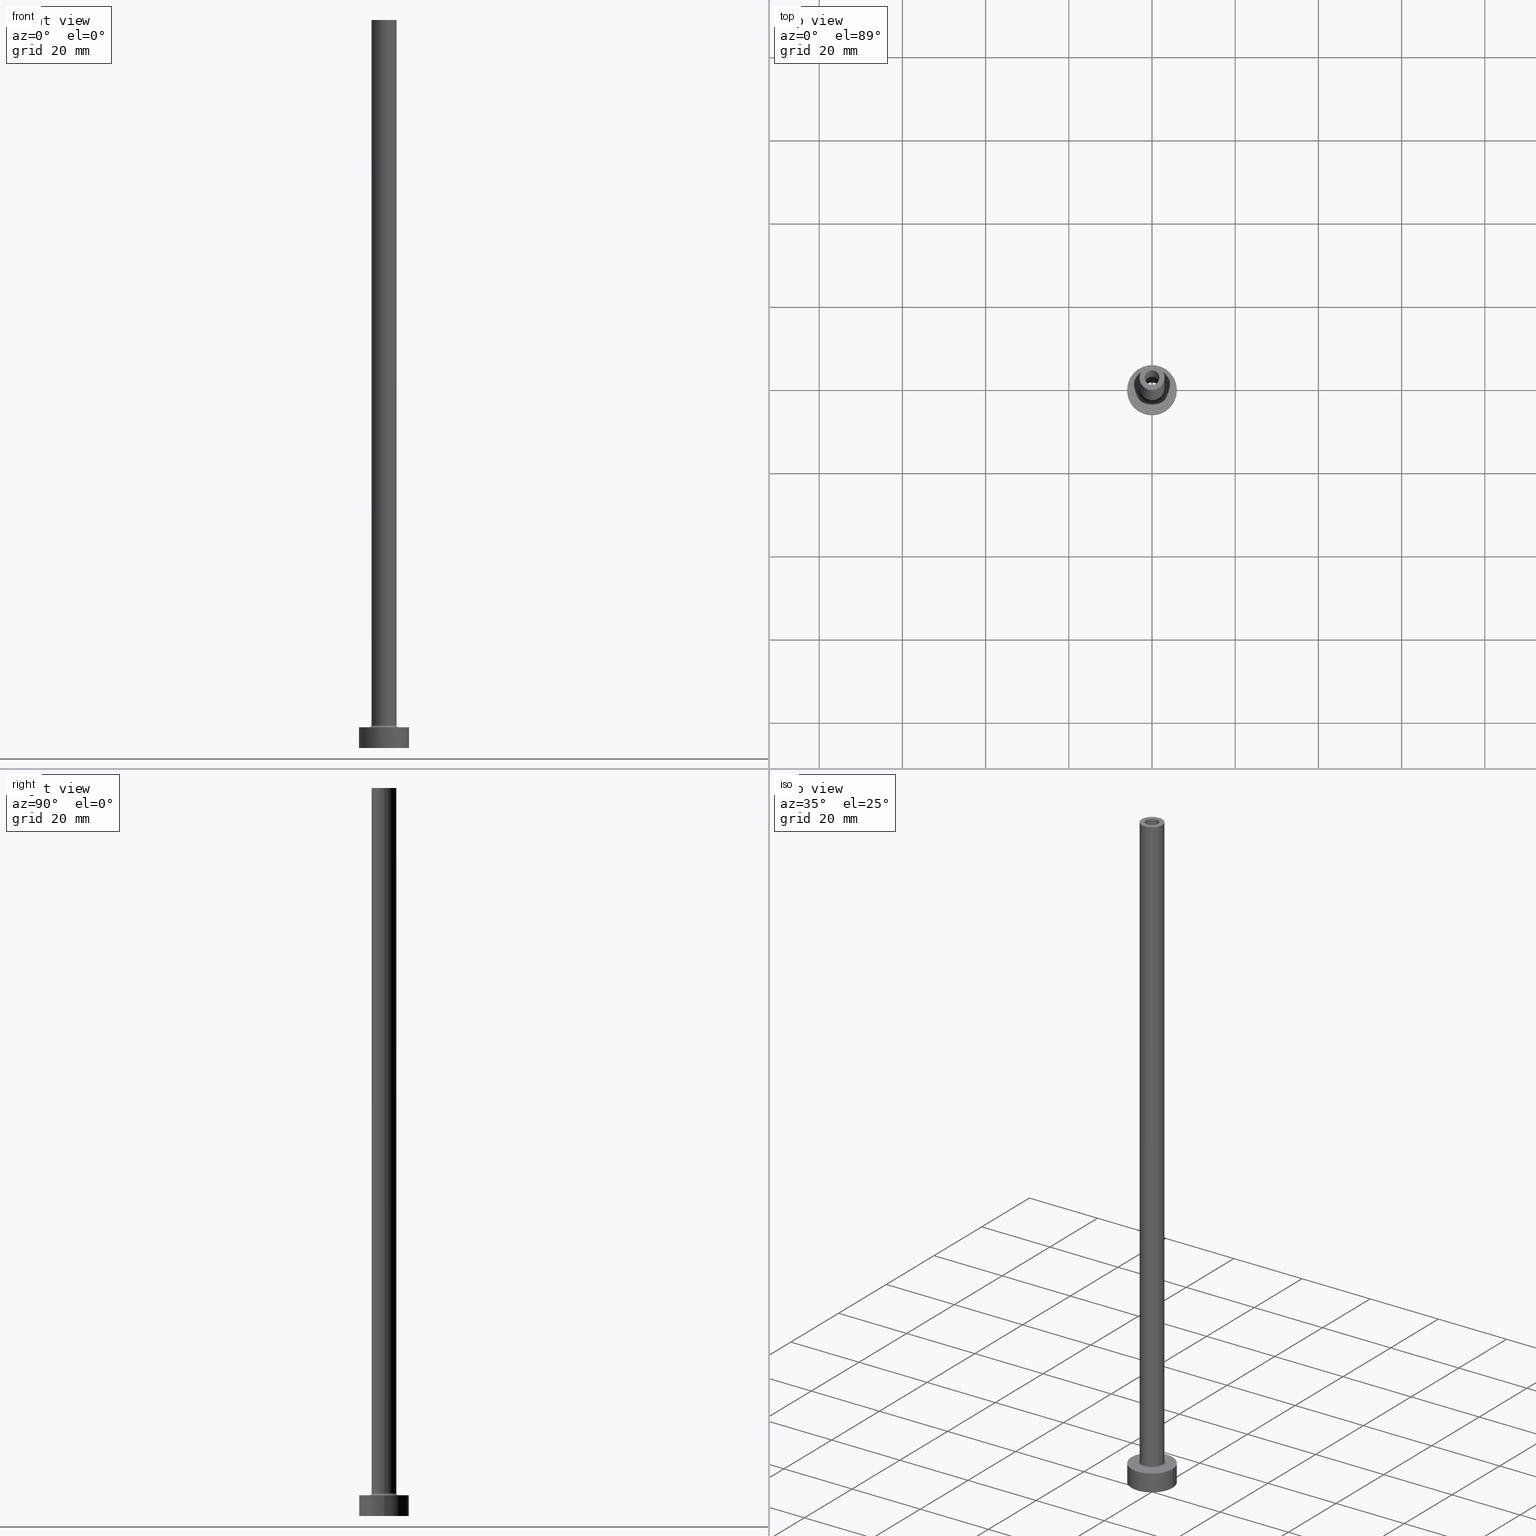
[diagram: canonical four-view strip — front | top / right | iso, engineering-drawing reading convention]
A machine part, canonical four-view strip (front | top / right | iso — engineering-drawing reading convention). The complete STEP part file that produces these views, byte-faithful:
ISO-10303-21;
HEADER;
FILE_DESCRIPTION (( 'STEP AP203' ),
    '1' );
FILE_NAME ('315e.STEP',
    '2023-02-13T17:51:21',
    ( '' ),
    ( '' ),
    'SwSTEP 2.0',
    'SolidWorks 2019',
    '' );
FILE_SCHEMA (( 'CONFIG_CONTROL_DESIGN' ));
ENDSEC;

DATA;
#1 = DIRECTION ( 'NONE',  ( 1.000000000000000000, 0.000000000000000000, 0.000000000000000000 ) ) ;
#2 = PLANE ( 'NONE',  #208 ) ;
#3 = CIRCLE ( 'NONE', #249, 6.000000000000000888 ) ;
#4 = ORIENTED_EDGE ( 'NONE', *, *, #47, .T. ) ;
#5 =( LENGTH_UNIT ( ) NAMED_UNIT ( * ) SI_UNIT ( .MILLI., .METRE. ) );
#6 = AXIS2_PLACEMENT_3D ( 'NONE', #154, #264, #132 ) ;
#7 = DIRECTION ( 'NONE',  ( 0.000000000000000000, 0.000000000000000000, -1.000000000000000000 ) ) ;
#8 = EDGE_LOOP ( 'NONE', ( #456, #276 ) ) ;
#9 = CARTESIAN_POINT ( 'NONE',  ( 0.000000000000000000, 0.000000000000000000, 0.000000000000000000 ) ) ;
#10 = CARTESIAN_POINT ( 'NONE',  ( 1.899999999999999911, 2.326828918379971365E-16, 135.3740115370177932 ) ) ;
#11 = PRODUCT ( '315e', '315e', '', ( #81 ) ) ;
#12 = ORIENTED_EDGE ( 'NONE', *, *, #252, .F. ) ;
#13 = AXIS2_PLACEMENT_3D ( 'NONE', #24, #228, #256 ) ;
#14 = LINE ( 'NONE', #246, #147 ) ;
#15 = ORIENTED_EDGE ( 'NONE', *, *, #375, .T. ) ;
#16 = APPROVAL ( #91, 'NEUR�EN�' ) ;
#17 = ORIENTED_EDGE ( 'NONE', *, *, #120, .T. ) ;
#18 = EDGE_LOOP ( 'NONE', ( #314, #415 ) ) ;
#19 = ORIENTED_EDGE ( 'NONE', *, *, #451, .F. ) ;
#20 = AXIS2_PLACEMENT_3D ( 'NONE', #455, #253, #212 ) ;
#21 = EDGE_CURVE ( 'NONE', #342, #180, #291, .T. ) ;
#22 = CALENDAR_DATE ( 2023, 13, 2 ) ;
#23 = PRODUCT_RELATED_PRODUCT_CATEGORY ( 'detail', '', ( #11 ) ) ;
#24 = CARTESIAN_POINT ( 'NONE',  ( 0.000000000000000000, 0.000000000000000000, 130.0000000000000000 ) ) ;
#25 = DIRECTION ( 'NONE',  ( 1.000000000000000000, 0.000000000000000000, 0.000000000000000000 ) ) ;
#26 = ORIENTED_EDGE ( 'NONE', *, *, #333, .F. ) ;
#27 = CARTESIAN_POINT ( 'NONE',  ( 3.000000000000000444, 3.673940397442060361E-16, 5.500000000000005329 ) ) ;
#28 = DIRECTION ( 'NONE',  ( -0.000000000000000000, -0.000000000000000000, -1.000000000000000000 ) ) ;
#29 = EDGE_LOOP ( 'NONE', ( #35, #140, #84, #248 ) ) ;
#30 = EDGE_CURVE ( 'NONE', #178, #372, #254, .T. ) ;
#31 = CC_DESIGN_APPROVAL ( #16, ( #177 ) ) ;
#32 = LINE ( 'NONE', #63, #58 ) ;
#33 = VERTEX_POINT ( 'NONE', #38 ) ;
#34 = CYLINDRICAL_SURFACE ( 'NONE', #336, 1.750000000000000000 ) ;
#35 = ORIENTED_EDGE ( 'NONE', *, *, #70, .T. ) ;
#36 = CARTESIAN_POINT ( 'NONE',  ( -1.899999999999999911, 0.000000000000000000, 135.3740115370177932 ) ) ;
#37 = DIRECTION ( 'NONE',  ( 0.000000000000000000, 0.000000000000000000, 1.000000000000000000 ) ) ;
#38 = CARTESIAN_POINT ( 'NONE',  ( -6.000000000000000888, 0.000000000000000000, 0.000000000000000000 ) ) ;
#39 = ORIENTED_EDGE ( 'NONE', *, *, #51, .T. ) ;
#40 = EDGE_CURVE ( 'NONE', #128, #55, #418, .T. ) ;
#41 = PERSON_AND_ORGANIZATION_ROLE ( 'creator' ) ;
#42 = CC_DESIGN_SECURITY_CLASSIFICATION ( #177, ( #200 ) ) ;
#43 = DIRECTION ( 'NONE',  ( 0.000000000000000000, 0.000000000000000000, 1.000000000000000000 ) ) ;
#44 = CARTESIAN_POINT ( 'NONE',  ( -1.899999999999999911, 0.000000000000000000, 130.0000000000000000 ) ) ;
#45 = APPROVAL ( #316, 'NEUR�EN�' ) ;
#46 = DIRECTION ( 'NONE',  ( 1.000000000000000000, 0.000000000000000000, 0.000000000000000000 ) ) ;
#47 = EDGE_CURVE ( 'NONE', #88, #323, #83, .T. ) ;
#48 = CLOSED_SHELL ( 'NONE', ( #395, #192, #122, #187, #260, #118, #172, #438, #61, #64, #94, #149, #271, #278 ) ) ;
#49 = CIRCLE ( 'NONE', #20, 1.899999999999999911 ) ;
#50 = ORGANIZATION ( 'NEUR�EN�', 'NEUR�EN�', '' ) ;
#51 = EDGE_CURVE ( 'NONE', #56, #440, #445, .T. ) ;
#52 = VERTEX_POINT ( 'NONE', #374 ) ;
#53 = PERSON_AND_ORGANIZATION ( #241, #50 ) ;
#54 = CC_DESIGN_APPROVAL ( #209, ( #95 ) ) ;
#55 = VERTEX_POINT ( 'NONE', #44 ) ;
#56 = VERTEX_POINT ( 'NONE', #420 ) ;
#57 = AXIS2_PLACEMENT_3D ( 'NONE', #352, #138, #76 ) ;
#58 = VECTOR ( 'NONE', #302, 1000.000000000000000 ) ;
#59 = LINE ( 'NONE', #452, #266 ) ;
#60 = DIRECTION ( 'NONE',  ( 0.000000000000000000, 0.000000000000000000, -1.000000000000000000 ) ) ;
#61 = ADVANCED_FACE ( 'NONE', ( #425 ), #270, .T. ) ;
#62 = CARTESIAN_POINT ( 'NONE',  ( -6.000000000000000888, 0.000000000000000000, 5.000000000000000000 ) ) ;
#63 = CARTESIAN_POINT ( 'NONE',  ( 1.750000000000000000, 2.143131898507868297E-16, 175.0000000000000284 ) ) ;
#64 = ADVANCED_FACE ( 'NONE', ( #167, #317 ), #461, .T. ) ;
#65 =( GEOMETRIC_REPRESENTATION_CONTEXT ( 3 ) GLOBAL_UNCERTAINTY_ASSIGNED_CONTEXT ( ( #145 ) ) GLOBAL_UNIT_ASSIGNED_CONTEXT ( ( #5, #134, #389 ) ) REPRESENTATION_CONTEXT ( 'NONE', 'WORKASPACE' ) );
#66 = DIRECTION ( 'NONE',  ( -0.000000000000000000, -0.000000000000000000, -1.000000000000000000 ) ) ;
#67 = DIRECTION ( 'NONE',  ( 1.000000000000000000, 0.000000000000000000, 0.000000000000000000 ) ) ;
#68 = DIRECTION ( 'NONE',  ( 1.000000000000000000, 0.000000000000000000, 0.000000000000000000 ) ) ;
#69 = CARTESIAN_POINT ( 'NONE',  ( -3.000000000000000444, 0.000000000000000000, 175.0000000000000284 ) ) ;
#70 = EDGE_CURVE ( 'NONE', #55, #128, #116, .T. ) ;
#71 = MANIFOLD_SOLID_BREP ( 'Odebrat vysunut�m4', #48 ) ;
#72 = FACE_OUTER_BOUND ( 'NONE', #29, .T. ) ;
#73 = CYLINDRICAL_SURFACE ( 'NONE', #107, 3.000000000000000444 ) ;
#74 = APPLICATION_PROTOCOL_DEFINITION ( 'international standard', 'config_control_design', 1994, #348 ) ;
#75 = AXIS2_PLACEMENT_3D ( 'NONE', #349, #37, #164 ) ;
#76 = DIRECTION ( 'NONE',  ( -1.000000000000000000, 0.000000000000000000, 0.000000000000000000 ) ) ;
#77 = ORIENTED_EDGE ( 'NONE', *, *, #201, .T. ) ;
#78 = COORDINATED_UNIVERSAL_TIME_OFFSET ( 1, 0, .AHEAD. ) ;
#79 = DIRECTION ( 'NONE',  ( 0.000000000000000000, 0.000000000000000000, 1.000000000000000000 ) ) ;
#80 = ORIENTED_EDGE ( 'NONE', *, *, #51, .F. ) ;
#81 = MECHANICAL_CONTEXT ( 'NONE', #348, 'mechanical' ) ;
#82 = ORIENTED_EDGE ( 'NONE', *, *, #367, .T. ) ;
#83 = CIRCLE ( 'NONE', #285, 1.750000000000000000 ) ;
#84 = ORIENTED_EDGE ( 'NONE', *, *, #333, .T. ) ;
#85 = CALENDAR_DATE ( 2023, 13, 2 ) ;
#86 = AXIS2_PLACEMENT_3D ( 'NONE', #343, #312, #102 ) ;
#87 = CARTESIAN_POINT ( 'NONE',  ( 0.000000000000000000, 0.000000000000000000, 5.500000000000005329 ) ) ;
#88 = VERTEX_POINT ( 'NONE', #133 ) ;
#89 = PRODUCT_DEFINITION_SHAPE ( 'NONE', 'NONE',  #95 ) ;
#90 = EDGE_LOOP ( 'NONE', ( #195, #238, #217, #96 ) ) ;
#91 = APPROVAL_STATUS ( 'not_yet_approved' ) ;
#92 = CARTESIAN_POINT ( 'NONE',  ( 3.500000000000000444, 0.000000000000000000, 5.500000000000005329 ) ) ;
#93 = VERTEX_POINT ( 'NONE', #69 ) ;
#94 = ADVANCED_FACE ( 'NONE', ( #423 ), #111, .F. ) ;
#95 = PRODUCT_DEFINITION ( 'NEZN�M�', '', #200, #435 ) ;
#96 = ORIENTED_EDGE ( 'NONE', *, *, #151, .F. ) ;
#97 = CARTESIAN_POINT ( 'NONE',  ( 0.000000000000000000, 0.000000000000000000, 175.0000000000000284 ) ) ;
#98 = ORIENTED_EDGE ( 'NONE', *, *, #252, .T. ) ;
#99 = ORIENTED_EDGE ( 'NONE', *, *, #201, .F. ) ;
#100 = EDGE_CURVE ( 'NONE', #159, #33, #3, .T. ) ;
#101 = DIRECTION ( 'NONE',  ( 1.000000000000000000, 0.000000000000000000, 0.000000000000000000 ) ) ;
#102 = DIRECTION ( 'NONE',  ( -1.000000000000000000, 0.000000000000000000, 0.000000000000000000 ) ) ;
#103 = FACE_OUTER_BOUND ( 'NONE', #301, .T. ) ;
#104 = CARTESIAN_POINT ( 'NONE',  ( 0.000000000000000000, 0.000000000000000000, 175.0000000000000284 ) ) ;
#105 = AXIS2_PLACEMENT_3D ( 'NONE', #183, #404, #25 ) ;
#106 = ORIENTED_EDGE ( 'NONE', *, *, #168, .T. ) ;
#107 = AXIS2_PLACEMENT_3D ( 'NONE', #383, #204, #229 ) ;
#108 = LINE ( 'NONE', #125, #287 ) ;
#109 = CYLINDRICAL_SURFACE ( 'NONE', #294, 1.899999999999999911 ) ;
#110 = CARTESIAN_POINT ( 'NONE',  ( 0.000000000000000000, 0.000000000000000000, 5.000000000000000000 ) ) ;
#111 = TOROIDAL_SURFACE ( 'NONE', #402, 3.500000000000000444, 0.5000000000000000000 ) ;
#112 = AXIS2_PLACEMENT_3D ( 'NONE', #97, #127, #346 ) ;
#113 = CARTESIAN_POINT ( 'NONE',  ( 0.000000000000000000, 0.000000000000000000, 130.0000000000000000 ) ) ;
#114 = EDGE_CURVE ( 'NONE', #55, #52, #296, .T. ) ;
#115 = LINE ( 'NONE', #10, #126 ) ;
#116 = CIRCLE ( 'NONE', #300, 1.899999999999999911 ) ;
#117 = AXIS2_PLACEMENT_3D ( 'NONE', #221, #413, #130 ) ;
#118 = ADVANCED_FACE ( 'NONE', ( #268 ), #186, .T. ) ;
#119 = CC_DESIGN_PERSON_AND_ORGANIZATION_ASSIGNMENT ( #53, #41, ( #200 ) ) ;
#120 = EDGE_CURVE ( 'NONE', #189, #93, #265, .T. ) ;
#121 = VECTOR ( 'NONE', #345, 1000.000000000000000 ) ;
#122 = ADVANCED_FACE ( 'NONE', ( #376 ), #277, .F. ) ;
#123 = APPLICATION_CONTEXT ( 'configuration controlled 3d designs of mechanical parts and assemblies' ) ;
#124 = CARTESIAN_POINT ( 'NONE',  ( 0.000000000000000000, 0.000000000000000000, 5.000000000000000000 ) ) ;
#125 = CARTESIAN_POINT ( 'NONE',  ( -1.750000000000000000, 0.000000000000000000, 175.0000000000000284 ) ) ;
#126 = VECTOR ( 'NONE', #424, 1000.000000000000000 ) ;
#127 = DIRECTION ( 'NONE',  ( 0.000000000000000000, 0.000000000000000000, 1.000000000000000000 ) ) ;
#128 = VERTEX_POINT ( 'NONE', #339 ) ;
#129 = DIRECTION ( 'NONE',  ( 1.000000000000000000, 0.000000000000000000, 0.000000000000000000 ) ) ;
#130 = DIRECTION ( 'NONE',  ( 1.000000000000000000, 0.000000000000000000, 0.000000000000000000 ) ) ;
#131 = LOCAL_TIME ( 18, 51, 21.00000000000000000, #78 ) ;
#132 = DIRECTION ( 'NONE',  ( 1.000000000000000000, 0.000000000000000000, 0.000000000000000000 ) ) ;
#133 = CARTESIAN_POINT ( 'NONE',  ( -1.750000000000000000, 0.000000000000000000, 175.0000000000000284 ) ) ;
#134 =( NAMED_UNIT ( * ) PLANE_ANGLE_UNIT ( ) SI_UNIT ( $, .RADIAN. ) );
#135 = CARTESIAN_POINT ( 'NONE',  ( 0.000000000000000000, 0.000000000000000000, 175.0000000000000284 ) ) ;
#136 = EDGE_CURVE ( 'NONE', #180, #159, #14, .T. ) ;
#137 = PERSON_AND_ORGANIZATION_ROLE ( 'creator' ) ;
#138 = DIRECTION ( 'NONE',  ( -0.000000000000000000, -0.000000000000000000, -1.000000000000000000 ) ) ;
#139 = EDGE_CURVE ( 'NONE', #180, #342, #141, .T. ) ;
#140 = ORIENTED_EDGE ( 'NONE', *, *, #451, .T. ) ;
#141 = CIRCLE ( 'NONE', #405, 6.000000000000000888 ) ;
#142 = CARTESIAN_POINT ( 'NONE',  ( 0.000000000000000000, 0.000000000000000000, 5.000000000000000000 ) ) ;
#143 = APPROVAL_DATE_TIME ( #394, #209 ) ;
#144 = AXIS2_PLACEMENT_3D ( 'NONE', #306, #66, #454 ) ;
#145 = UNCERTAINTY_MEASURE_WITH_UNIT (LENGTH_MEASURE( 1.000000000000000082E-05 ), #5, 'distance_accuracy_value', 'NONE');
#146 = ORIENTED_EDGE ( 'NONE', *, *, #151, .T. ) ;
#147 = VECTOR ( 'NONE', #206, 1000.000000000000000 ) ;
#148 = ORIENTED_EDGE ( 'NONE', *, *, #21, .T. ) ;
#149 = ADVANCED_FACE ( 'NONE', ( #224 ), #381, .F. ) ;
#150 = EDGE_LOOP ( 'NONE', ( #171, #280, #220, #12 ) ) ;
#151 = EDGE_CURVE ( 'NONE', #93, #347, #194, .T. ) ;
#152 = DATE_AND_TIME ( #250, #165 ) ;
#153 = AXIS2_PLACEMENT_3D ( 'NONE', #142, #163, #185 ) ;
#154 = CARTESIAN_POINT ( 'NONE',  ( 0.000000000000000000, 0.000000000000000000, 5.500000000000005329 ) ) ;
#155 = CARTESIAN_POINT ( 'NONE',  ( 3.500000000000000444, 0.000000000000000000, 5.000000000000002665 ) ) ;
#156 = CIRCLE ( 'NONE', #337, 1.750000000000000000 ) ;
#157 = EDGE_LOOP ( 'NONE', ( #205, #299, #267, #259 ) ) ;
#158 = DIRECTION ( 'NONE',  ( 1.224646799147353207E-16, 1.000000000000000000, -0.000000000000000000 ) ) ;
#159 = VERTEX_POINT ( 'NONE', #292 ) ;
#160 = EDGE_CURVE ( 'NONE', #372, #322, #385, .T. ) ;
#161 = DIRECTION ( 'NONE',  ( 1.000000000000000000, 0.000000000000000000, 0.000000000000000000 ) ) ;
#162 = ORIENTED_EDGE ( 'NONE', *, *, #305, .T. ) ;
#163 = DIRECTION ( 'NONE',  ( 0.000000000000000000, 0.000000000000000000, 1.000000000000000000 ) ) ;
#164 = DIRECTION ( 'NONE',  ( 1.000000000000000000, 0.000000000000000000, 0.000000000000000000 ) ) ;
#165 = LOCAL_TIME ( 18, 51, 21.00000000000000000, #335 ) ;
#166 = PERSON_AND_ORGANIZATION ( #241, #50 ) ;
#167 = FACE_BOUND ( 'NONE', #18, .T. ) ;
#168 = EDGE_CURVE ( 'NONE', #52, #412, #49, .T. ) ;
#169 = DIRECTION ( 'NONE',  ( 1.000000000000000000, 0.000000000000000000, 0.000000000000000000 ) ) ;
#170 = APPROVAL_STATUS ( 'not_yet_approved' ) ;
#171 = ORIENTED_EDGE ( 'NONE', *, *, #332, .F. ) ;
#172 = ADVANCED_FACE ( 'NONE', ( #218, #399 ), #203, .T. ) ;
#173 = EDGE_LOOP ( 'NONE', ( #303, #98 ) ) ;
#174 = FACE_OUTER_BOUND ( 'NONE', #443, .T. ) ;
#175 = AXIS2_PLACEMENT_3D ( 'NONE', #231, #414, #67 ) ;
#176 = PERSON_AND_ORGANIZATION ( #241, #50 ) ;
#177 = SECURITY_CLASSIFICATION ( '', '', #460 ) ;
#178 = VERTEX_POINT ( 'NONE', #27 ) ;
#179 = DIRECTION ( 'NONE',  ( 1.000000000000000000, 0.000000000000000000, 0.000000000000000000 ) ) ;
#180 = VERTEX_POINT ( 'NONE', #272 ) ;
#181 = APPROVAL_DATE_TIME ( #293, #16 ) ;
#182 = EDGE_CURVE ( 'NONE', #342, #33, #236, .T. ) ;
#183 = CARTESIAN_POINT ( 'NONE',  ( 0.000000000000000000, 0.000000000000000000, 5.000000000000000000 ) ) ;
#184 = DIRECTION ( 'NONE',  ( 0.000000000000000000, 0.000000000000000000, 1.000000000000000000 ) ) ;
#185 = DIRECTION ( 'NONE',  ( 1.000000000000000000, 0.000000000000000000, -0.000000000000000000 ) ) ;
#186 = CYLINDRICAL_SURFACE ( 'NONE', #232, 6.000000000000000888 ) ;
#187 = ADVANCED_FACE ( 'NONE', ( #329 ), #73, .T. ) ;
#188 = FACE_OUTER_BOUND ( 'NONE', #368, .T. ) ;
#189 = VERTEX_POINT ( 'NONE', #261 ) ;
#190 = CARTESIAN_POINT ( 'NONE',  ( -3.000000000000000444, 0.000000000000000000, 175.0000000000000284 ) ) ;
#191 = CARTESIAN_POINT ( 'NONE',  ( -3.500000000000000444, 4.286263797015737088E-16, 5.500000000000005329 ) ) ;
#192 = ADVANCED_FACE ( 'NONE', ( #72 ), #109, .F. ) ;
#193 = VECTOR ( 'NONE', #308, 1000.000000000000000 ) ;
#194 = LINE ( 'NONE', #190, #121 ) ;
#195 = ORIENTED_EDGE ( 'NONE', *, *, #120, .F. ) ;
#196 = DIRECTION ( 'NONE',  ( 0.000000000000000000, 0.000000000000000000, 1.000000000000000000 ) ) ;
#197 = CARTESIAN_POINT ( 'NONE',  ( 1.899999999999999911, 2.326828918379971365E-16, 0.000000000000000000 ) ) ;
#198 = COORDINATED_UNIVERSAL_TIME_OFFSET ( 1, 0, .AHEAD. ) ;
#199 = CARTESIAN_POINT ( 'NONE',  ( 0.000000000000000000, 0.000000000000000000, 0.000000000000000000 ) ) ;
#200 = PRODUCT_DEFINITION_FORMATION_WITH_SPECIFIED_SOURCE ( 'LIBOVOLN�', '', #11, .NOT_KNOWN. ) ;
#201 = EDGE_CURVE ( 'NONE', #347, #178, #331, .T. ) ;
#202 = CARTESIAN_POINT ( 'NONE',  ( 0.000000000000000000, 0.000000000000000000, 130.0000000000000000 ) ) ;
#203 = PLANE ( 'NONE',  #153 ) ;
#204 = DIRECTION ( 'NONE',  ( -0.000000000000000000, -0.000000000000000000, -1.000000000000000000 ) ) ;
#205 = ORIENTED_EDGE ( 'NONE', *, *, #139, .F. ) ;
#206 = DIRECTION ( 'NONE',  ( -0.000000000000000000, -0.000000000000000000, -1.000000000000000000 ) ) ;
#207 = DATE_AND_TIME ( #85, #304 ) ;
#208 = AXIS2_PLACEMENT_3D ( 'NONE', #9, #273, #235 ) ;
#209 = APPROVAL ( #170, 'NEUR�EN�' ) ;
#210 = COORDINATED_UNIVERSAL_TIME_OFFSET ( 1, 0, .AHEAD. ) ;
#211 = CARTESIAN_POINT ( 'NONE',  ( 0.000000000000000000, 0.000000000000000000, 135.3740115370177932 ) ) ;
#212 = DIRECTION ( 'NONE',  ( 1.000000000000000000, 0.000000000000000000, 0.000000000000000000 ) ) ;
#213 = AXIS2_PLACEMENT_3D ( 'NONE', #135, #274, #426 ) ;
#214 = SHAPE_DEFINITION_REPRESENTATION ( #89, #434 ) ;
#215 = CC_DESIGN_PERSON_AND_ORGANIZATION_ASSIGNMENT ( #361, #137, ( #95 ) ) ;
#216 = LOCAL_TIME ( 18, 51, 21.00000000000000000, #210 ) ;
#217 = ORIENTED_EDGE ( 'NONE', *, *, #416, .T. ) ;
#218 = FACE_BOUND ( 'NONE', #173, .T. ) ;
#219 = ORIENTED_EDGE ( 'NONE', *, *, #408, .T. ) ;
#220 = ORIENTED_EDGE ( 'NONE', *, *, #30, .T. ) ;
#221 = CARTESIAN_POINT ( 'NONE',  ( 0.000000000000000000, 0.000000000000000000, 0.000000000000000000 ) ) ;
#222 = DIRECTION ( 'NONE',  ( 0.000000000000000000, -1.000000000000000000, 0.000000000000000000 ) ) ;
#223 = APPROVAL_PERSON_ORGANIZATION ( #427, #209, #240 ) ;
#224 = FACE_OUTER_BOUND ( 'NONE', #432, .T. ) ;
#225 = ORIENTED_EDGE ( 'NONE', *, *, #367, .F. ) ;
#226 = FACE_OUTER_BOUND ( 'NONE', #8, .T. ) ;
#227 = ORIENTED_EDGE ( 'NONE', *, *, #375, .F. ) ;
#228 = DIRECTION ( 'NONE',  ( 0.000000000000000000, 0.000000000000000000, 1.000000000000000000 ) ) ;
#229 = DIRECTION ( 'NONE',  ( -1.000000000000000000, 0.000000000000000000, 0.000000000000000000 ) ) ;
#230 = DIRECTION ( 'NONE',  ( -1.000000000000000000, 0.000000000000000000, 0.000000000000000000 ) ) ;
#231 = CARTESIAN_POINT ( 'NONE',  ( 0.000000000000000000, 0.000000000000000000, 5.000000000000000000 ) ) ;
#232 = AXIS2_PLACEMENT_3D ( 'NONE', #124, #255, #422 ) ;
#233 = AXIS2_PLACEMENT_3D ( 'NONE', #297, #380, #382 ) ;
#234 = DIRECTION ( 'NONE',  ( 0.000000000000000000, 0.000000000000000000, 1.000000000000000000 ) ) ;
#235 = DIRECTION ( 'NONE',  ( 1.000000000000000000, 0.000000000000000000, -0.000000000000000000 ) ) ;
#236 = LINE ( 'NONE', #245, #244 ) ;
#237 = DATE_TIME_ROLE ( 'creation_date' ) ;
#238 = ORIENTED_EDGE ( 'NONE', *, *, #350, .T. ) ;
#239 = PERSON_AND_ORGANIZATION ( #241, #50 ) ;
#240 = APPROVAL_ROLE ( '' ) ;
#241 = PERSON ( 'NEUR�EN�', 'NEUR�EN�', 'NEUR�EN�', ('NEUR�EN�'), ('NEUR�EN�'), ('NEUR�EN�') ) ;
#242 = CC_DESIGN_DATE_AND_TIME_ASSIGNMENT ( #152, #288, ( #177 ) ) ;
#243 = CARTESIAN_POINT ( 'NONE',  ( 0.000000000000000000, 0.000000000000000000, 175.0000000000000284 ) ) ;
#244 = VECTOR ( 'NONE', #398, 1000.000000000000000 ) ;
#245 = CARTESIAN_POINT ( 'NONE',  ( -6.000000000000000888, 0.000000000000000000, 5.000000000000000000 ) ) ;
#246 = CARTESIAN_POINT ( 'NONE',  ( 6.000000000000000888, 7.347880794884120722E-16, 5.000000000000000000 ) ) ;
#247 = DIRECTION ( 'NONE',  ( 0.000000000000000000, 0.000000000000000000, 1.000000000000000000 ) ) ;
#248 = ORIENTED_EDGE ( 'NONE', *, *, #114, .F. ) ;
#249 = AXIS2_PLACEMENT_3D ( 'NONE', #199, #319, #1 ) ;
#250 = CALENDAR_DATE ( 2023, 13, 2 ) ;
#251 = CIRCLE ( 'NONE', #406, 6.000000000000000888 ) ;
#252 = EDGE_CURVE ( 'NONE', #322, #372, #344, .T. ) ;
#253 = DIRECTION ( 'NONE',  ( -0.000000000000000000, -0.000000000000000000, -1.000000000000000000 ) ) ;
#254 = CIRCLE ( 'NONE', #360, 0.5000000000000004441 ) ;
#255 = DIRECTION ( 'NONE',  ( -0.000000000000000000, -0.000000000000000000, -1.000000000000000000 ) ) ;
#256 = DIRECTION ( 'NONE',  ( 1.000000000000000000, 0.000000000000000000, -0.000000000000000000 ) ) ;
#257 = CIRCLE ( 'NONE', #378, 3.000000000000000444 ) ;
#258 = CARTESIAN_POINT ( 'NONE',  ( -3.500000000000000444, 4.286263797015737088E-16, 5.000000000000002665 ) ) ;
#259 = ORIENTED_EDGE ( 'NONE', *, *, #182, .F. ) ;
#260 = ADVANCED_FACE ( 'NONE', ( #411 ), #449, .T. ) ;
#261 = CARTESIAN_POINT ( 'NONE',  ( 3.000000000000000444, 3.673940397442060361E-16, 175.0000000000000284 ) ) ;
#262 = CARTESIAN_POINT ( 'NONE',  ( 0.000000000000000000, 0.000000000000000000, 175.0000000000000284 ) ) ;
#263 = AXIS2_PLACEMENT_3D ( 'NONE', #113, #431, #392 ) ;
#264 = DIRECTION ( 'NONE',  ( 0.000000000000000000, 0.000000000000000000, 1.000000000000000000 ) ) ;
#265 = CIRCLE ( 'NONE', #436, 3.000000000000000444 ) ;
#266 = VECTOR ( 'NONE', #28, 1000.000000000000000 ) ;
#267 = ORIENTED_EDGE ( 'NONE', *, *, #100, .T. ) ;
#268 = FACE_OUTER_BOUND ( 'NONE', #307, .T. ) ;
#269 = CYLINDRICAL_SURFACE ( 'NONE', #233, 1.750000000000000000 ) ;
#270 = CYLINDRICAL_SURFACE ( 'NONE', #57, 3.000000000000000444 ) ;
#271 = ADVANCED_FACE ( 'NONE', ( #417, #226 ), #379, .F. ) ;
#272 = CARTESIAN_POINT ( 'NONE',  ( 6.000000000000000888, 7.347880794884120722E-16, 5.000000000000000000 ) ) ;
#273 = DIRECTION ( 'NONE',  ( 0.000000000000000000, 0.000000000000000000, 1.000000000000000000 ) ) ;
#274 = DIRECTION ( 'NONE',  ( 0.000000000000000000, 0.000000000000000000, 1.000000000000000000 ) ) ;
#275 = CALENDAR_DATE ( 2023, 13, 2 ) ;
#276 = ORIENTED_EDGE ( 'NONE', *, *, #40, .F. ) ;
#277 = TOROIDAL_SURFACE ( 'NONE', #286, 3.500000000000000444, 0.5000000000000000000 ) ;
#278 = ADVANCED_FACE ( 'NONE', ( #103 ), #269, .F. ) ;
#279 = COORDINATED_UNIVERSAL_TIME_OFFSET ( 1, 0, .AHEAD. ) ;
#280 = ORIENTED_EDGE ( 'NONE', *, *, #416, .F. ) ;
#281 = CC_DESIGN_PERSON_AND_ORGANIZATION_ASSIGNMENT ( #433, #365, ( #177 ) ) ;
#282 = APPLICATION_PROTOCOL_DEFINITION ( 'international standard', 'config_control_design', 1994, #123 ) ;
#283 = ORIENTED_EDGE ( 'NONE', *, *, #114, .T. ) ;
#284 = ORIENTED_EDGE ( 'NONE', *, *, #139, .T. ) ;
#285 = AXIS2_PLACEMENT_3D ( 'NONE', #243, #313, #318 ) ;
#286 = AXIS2_PLACEMENT_3D ( 'NONE', #87, #247, #334 ) ;
#287 = VECTOR ( 'NONE', #340, 1000.000000000000000 ) ;
#288 = DATE_TIME_ROLE ( 'classification_date' ) ;
#289 = EDGE_LOOP ( 'NONE', ( #450, #225, #146, #77 ) ) ;
#290 = APPROVAL_ROLE ( '' ) ;
#291 = CIRCLE ( 'NONE', #105, 6.000000000000000888 ) ;
#292 = CARTESIAN_POINT ( 'NONE',  ( 6.000000000000000888, 7.347880794884120722E-16, 0.000000000000000000 ) ) ;
#293 = DATE_AND_TIME ( #22, #216 ) ;
#294 = AXIS2_PLACEMENT_3D ( 'NONE', #211, #7, #309 ) ;
#295 = ORIENTED_EDGE ( 'NONE', *, *, #21, .F. ) ;
#296 = LINE ( 'NONE', #36, #193 ) ;
#297 = CARTESIAN_POINT ( 'NONE',  ( 0.000000000000000000, 0.000000000000000000, 175.0000000000000284 ) ) ;
#298 = CARTESIAN_POINT ( 'NONE',  ( 0.000000000000000000, 0.000000000000000000, 135.3740115370177932 ) ) ;
#299 = ORIENTED_EDGE ( 'NONE', *, *, #136, .T. ) ;
#300 = AXIS2_PLACEMENT_3D ( 'NONE', #202, #357, #459 ) ;
#301 = EDGE_LOOP ( 'NONE', ( #330, #311, #15, #397 ) ) ;
#302 = DIRECTION ( 'NONE',  ( 0.000000000000000000, 0.000000000000000000, -1.000000000000000000 ) ) ;
#303 = ORIENTED_EDGE ( 'NONE', *, *, #160, .T. ) ;
#304 = LOCAL_TIME ( 18, 51, 21.00000000000000000, #198 ) ;
#305 = EDGE_CURVE ( 'NONE', #323, #440, #32, .T. ) ;
#306 = CARTESIAN_POINT ( 'NONE',  ( 0.000000000000000000, 0.000000000000000000, 5.000000000000000000 ) ) ;
#307 = EDGE_LOOP ( 'NONE', ( #358, #295, #386, #219 ) ) ;
#308 = DIRECTION ( 'NONE',  ( 0.000000000000000000, 0.000000000000000000, -1.000000000000000000 ) ) ;
#309 = DIRECTION ( 'NONE',  ( -1.000000000000000000, 0.000000000000000000, 0.000000000000000000 ) ) ;
#310 = ORIENTED_EDGE ( 'NONE', *, *, #160, .F. ) ;
#311 = ORIENTED_EDGE ( 'NONE', *, *, #321, .T. ) ;
#312 = DIRECTION ( 'NONE',  ( -0.000000000000000000, -0.000000000000000000, -1.000000000000000000 ) ) ;
#313 = DIRECTION ( 'NONE',  ( 0.000000000000000000, 0.000000000000000000, 1.000000000000000000 ) ) ;
#314 = ORIENTED_EDGE ( 'NONE', *, *, #47, .F. ) ;
#315 = EDGE_LOOP ( 'NONE', ( #82, #17 ) ) ;
#316 = APPROVAL_STATUS ( 'not_yet_approved' ) ;
#317 = FACE_OUTER_BOUND ( 'NONE', #315, .T. ) ;
#318 = DIRECTION ( 'NONE',  ( 1.000000000000000000, 0.000000000000000000, 0.000000000000000000 ) ) ;
#319 = DIRECTION ( 'NONE',  ( 0.000000000000000000, 0.000000000000000000, 1.000000000000000000 ) ) ;
#320 = CARTESIAN_POINT ( 'NONE',  ( 0.000000000000000000, 0.000000000000000000, 0.000000000000000000 ) ) ;
#321 = EDGE_CURVE ( 'NONE', #323, #88, #442, .T. ) ;
#322 = VERTEX_POINT ( 'NONE', #258 ) ;
#323 = VERTEX_POINT ( 'NONE', #444 ) ;
#324 = CARTESIAN_POINT ( 'NONE',  ( 1.750000000000000000, 2.143131898507868297E-16, 130.0000000000000000 ) ) ;
#325 = CC_DESIGN_PERSON_AND_ORGANIZATION_ASSIGNMENT ( #166, #328, ( #200 ) ) ;
#326 = ORIENTED_EDGE ( 'NONE', *, *, #408, .F. ) ;
#327 = APPROVAL_DATE_TIME ( #430, #45 ) ;
#328 = PERSON_AND_ORGANIZATION_ROLE ( 'design_supplier' ) ;
#329 = FACE_OUTER_BOUND ( 'NONE', #90, .T. ) ;
#330 = ORIENTED_EDGE ( 'NONE', *, *, #305, .F. ) ;
#331 = CIRCLE ( 'NONE', #6, 3.000000000000000444 ) ;
#332 = EDGE_CURVE ( 'NONE', #347, #322, #373, .T. ) ;
#333 = EDGE_CURVE ( 'NONE', #412, #52, #390, .T. ) ;
#334 = DIRECTION ( 'NONE',  ( 1.000000000000000000, 0.000000000000000000, 0.000000000000000000 ) ) ;
#335 = COORDINATED_UNIVERSAL_TIME_OFFSET ( 1, 0, .AHEAD. ) ;
#336 = AXIS2_PLACEMENT_3D ( 'NONE', #262, #388, #230 ) ;
#337 = AXIS2_PLACEMENT_3D ( 'NONE', #457, #196, #161 ) ;
#338 = ORIENTED_EDGE ( 'NONE', *, *, #332, .T. ) ;
#339 = CARTESIAN_POINT ( 'NONE',  ( 1.899999999999999911, 2.326828918379971365E-16, 130.0000000000000000 ) ) ;
#340 = DIRECTION ( 'NONE',  ( 0.000000000000000000, 0.000000000000000000, -1.000000000000000000 ) ) ;
#341 = CARTESIAN_POINT ( 'NONE',  ( -3.000000000000000444, 0.000000000000000000, 5.500000000000005329 ) ) ;
#342 = VERTEX_POINT ( 'NONE', #62 ) ;
#343 = CARTESIAN_POINT ( 'NONE',  ( 0.000000000000000000, 0.000000000000000000, 5.000000000000000000 ) ) ;
#344 = CIRCLE ( 'NONE', #144, 3.500000000000000444 ) ;
#345 = DIRECTION ( 'NONE',  ( -0.000000000000000000, -0.000000000000000000, -1.000000000000000000 ) ) ;
#346 = DIRECTION ( 'NONE',  ( 1.000000000000000000, 0.000000000000000000, 0.000000000000000000 ) ) ;
#347 = VERTEX_POINT ( 'NONE', #341 ) ;
#348 = APPLICATION_CONTEXT ( 'configuration controlled 3d designs of mechanical parts and assemblies' ) ;
#349 = CARTESIAN_POINT ( 'NONE',  ( 0.000000000000000000, 0.000000000000000000, 5.500000000000005329 ) ) ;
#350 = EDGE_CURVE ( 'NONE', #189, #178, #59, .T. ) ;
#351 = CALENDAR_DATE ( 2023, 13, 2 ) ;
#352 = CARTESIAN_POINT ( 'NONE',  ( 0.000000000000000000, 0.000000000000000000, 175.0000000000000284 ) ) ;
#353 = CARTESIAN_POINT ( 'NONE',  ( 0.000000000000000000, 0.000000000000000000, 130.0000000000000000 ) ) ;
#354 = APPROVAL_PERSON_ORGANIZATION ( #239, #45, #391 ) ;
#355 = CARTESIAN_POINT ( 'NONE',  ( 0.000000000000000000, 0.000000000000000000, 5.500000000000005329 ) ) ;
#356 = PERSON_AND_ORGANIZATION_ROLE ( 'design_owner' ) ;
#357 = DIRECTION ( 'NONE',  ( 0.000000000000000000, 0.000000000000000000, 1.000000000000000000 ) ) ;
#358 = ORIENTED_EDGE ( 'NONE', *, *, #136, .F. ) ;
#359 = DIRECTION ( 'NONE',  ( 0.000000000000000000, 0.000000000000000000, 1.000000000000000000 ) ) ;
#360 = AXIS2_PLACEMENT_3D ( 'NONE', #92, #222, #401 ) ;
#361 = PERSON_AND_ORGANIZATION ( #241, #50 ) ;
#362 = DIRECTION ( 'NONE',  ( 0.000000000000000000, 0.000000000000000000, 1.000000000000000000 ) ) ;
#363 = EDGE_LOOP ( 'NONE', ( #366, #26 ) ) ;
#364 = EDGE_LOOP ( 'NONE', ( #99, #338, #310, #369 ) ) ;
#365 = PERSON_AND_ORGANIZATION_ROLE ( 'classification_officer' ) ;
#366 = ORIENTED_EDGE ( 'NONE', *, *, #168, .F. ) ;
#367 = EDGE_CURVE ( 'NONE', #93, #189, #257, .T. ) ;
#368 = EDGE_LOOP ( 'NONE', ( #4, #162, #80, #227 ) ) ;
#369 = ORIENTED_EDGE ( 'NONE', *, *, #30, .F. ) ;
#370 = EDGE_LOOP ( 'NONE', ( #148, #284 ) ) ;
#371 = AXIS2_PLACEMENT_3D ( 'NONE', #353, #79, #46 ) ;
#372 = VERTEX_POINT ( 'NONE', #155 ) ;
#373 = CIRCLE ( 'NONE', #421, 0.4999999999999995559 ) ;
#374 = CARTESIAN_POINT ( 'NONE',  ( -1.899999999999999911, 0.000000000000000000, 0.000000000000000000 ) ) ;
#375 = EDGE_CURVE ( 'NONE', #88, #56, #108, .T. ) ;
#376 = FACE_OUTER_BOUND ( 'NONE', #364, .T. ) ;
#377 = CC_DESIGN_DATE_AND_TIME_ASSIGNMENT ( #207, #237, ( #95 ) ) ;
#378 = AXIS2_PLACEMENT_3D ( 'NONE', #104, #184, #129 ) ;
#379 = PLANE ( 'NONE',  #13 ) ;
#380 = DIRECTION ( 'NONE',  ( 0.000000000000000000, 0.000000000000000000, -1.000000000000000000 ) ) ;
#381 = CYLINDRICAL_SURFACE ( 'NONE', #441, 1.899999999999999911 ) ;
#382 = DIRECTION ( 'NONE',  ( -1.000000000000000000, 0.000000000000000000, 0.000000000000000000 ) ) ;
#383 = CARTESIAN_POINT ( 'NONE',  ( 0.000000000000000000, 0.000000000000000000, 175.0000000000000284 ) ) ;
#384 = DIRECTION ( 'NONE',  ( -1.000000000000000000, 1.224646799147354440E-16, 0.000000000000000000 ) ) ;
#385 = CIRCLE ( 'NONE', #175, 3.500000000000000444 ) ;
#386 = ORIENTED_EDGE ( 'NONE', *, *, #182, .T. ) ;
#387 = DIRECTION ( 'NONE',  ( 0.000000000000000000, 0.000000000000000000, 1.000000000000000000 ) ) ;
#388 = DIRECTION ( 'NONE',  ( 0.000000000000000000, 0.000000000000000000, -1.000000000000000000 ) ) ;
#389 =( NAMED_UNIT ( * ) SI_UNIT ( $, .STERADIAN. ) SOLID_ANGLE_UNIT ( ) );
#390 = CIRCLE ( 'NONE', #117, 1.899999999999999911 ) ;
#391 = APPROVAL_ROLE ( '' ) ;
#392 = DIRECTION ( 'NONE',  ( 1.000000000000000000, 0.000000000000000000, 0.000000000000000000 ) ) ;
#393 = FACE_BOUND ( 'NONE', #363, .T. ) ;
#394 = DATE_AND_TIME ( #275, #448 ) ;
#395 = ADVANCED_FACE ( 'NONE', ( #188 ), #34, .F. ) ;
#396 = CIRCLE ( 'NONE', #75, 3.000000000000000444 ) ;
#397 = ORIENTED_EDGE ( 'NONE', *, *, #400, .F. ) ;
#398 = DIRECTION ( 'NONE',  ( -0.000000000000000000, -0.000000000000000000, -1.000000000000000000 ) ) ;
#399 = FACE_OUTER_BOUND ( 'NONE', #370, .T. ) ;
#400 = EDGE_CURVE ( 'NONE', #440, #56, #156, .T. ) ;
#401 = DIRECTION ( 'NONE',  ( 0.000000000000000000, 0.000000000000000000, -1.000000000000000000 ) ) ;
#402 = AXIS2_PLACEMENT_3D ( 'NONE', #355, #43, #169 ) ;
#403 = EDGE_LOOP ( 'NONE', ( #39, #439 ) ) ;
#404 = DIRECTION ( 'NONE',  ( 0.000000000000000000, 0.000000000000000000, 1.000000000000000000 ) ) ;
#405 = AXIS2_PLACEMENT_3D ( 'NONE', #110, #362, #409 ) ;
#406 = AXIS2_PLACEMENT_3D ( 'NONE', #419, #234, #68 ) ;
#407 = PERSON_AND_ORGANIZATION ( #241, #50 ) ;
#408 = EDGE_CURVE ( 'NONE', #33, #159, #251, .T. ) ;
#409 = DIRECTION ( 'NONE',  ( 1.000000000000000000, 0.000000000000000000, 0.000000000000000000 ) ) ;
#410 = CARTESIAN_POINT ( 'NONE',  ( 0.000000000000000000, 0.000000000000000000, 175.0000000000000284 ) ) ;
#411 = FACE_OUTER_BOUND ( 'NONE', #157, .T. ) ;
#412 = VERTEX_POINT ( 'NONE', #197 ) ;
#413 = DIRECTION ( 'NONE',  ( -0.000000000000000000, -0.000000000000000000, -1.000000000000000000 ) ) ;
#414 = DIRECTION ( 'NONE',  ( -0.000000000000000000, -0.000000000000000000, -1.000000000000000000 ) ) ;
#415 = ORIENTED_EDGE ( 'NONE', *, *, #321, .F. ) ;
#416 = EDGE_CURVE ( 'NONE', #178, #347, #396, .T. ) ;
#417 = FACE_BOUND ( 'NONE', #403, .T. ) ;
#418 = CIRCLE ( 'NONE', #263, 1.899999999999999911 ) ;
#419 = CARTESIAN_POINT ( 'NONE',  ( 0.000000000000000000, 0.000000000000000000, 0.000000000000000000 ) ) ;
#420 = CARTESIAN_POINT ( 'NONE',  ( -1.750000000000000000, 0.000000000000000000, 130.0000000000000000 ) ) ;
#421 = AXIS2_PLACEMENT_3D ( 'NONE', #191, #158, #384 ) ;
#422 = DIRECTION ( 'NONE',  ( -1.000000000000000000, 0.000000000000000000, 0.000000000000000000 ) ) ;
#423 = FACE_OUTER_BOUND ( 'NONE', #150, .T. ) ;
#424 = DIRECTION ( 'NONE',  ( 0.000000000000000000, 0.000000000000000000, -1.000000000000000000 ) ) ;
#425 = FACE_OUTER_BOUND ( 'NONE', #289, .T. ) ;
#426 = DIRECTION ( 'NONE',  ( 1.000000000000000000, 0.000000000000000000, -0.000000000000000000 ) ) ;
#427 = PERSON_AND_ORGANIZATION ( #241, #50 ) ;
#428 = ORIENTED_EDGE ( 'NONE', *, *, #40, .T. ) ;
#429 = CC_DESIGN_APPROVAL ( #45, ( #200 ) ) ;
#430 = DATE_AND_TIME ( #351, #131 ) ;
#431 = DIRECTION ( 'NONE',  ( 0.000000000000000000, 0.000000000000000000, 1.000000000000000000 ) ) ;
#432 = EDGE_LOOP ( 'NONE', ( #19, #428, #283, #106 ) ) ;
#433 = PERSON_AND_ORGANIZATION ( #241, #50 ) ;
#434 = ADVANCED_BREP_SHAPE_REPRESENTATION ( '315e', ( #71, #437 ), #65 ) ;
#435 = DESIGN_CONTEXT ( 'detailed design', #123, 'design' ) ;
#436 = AXIS2_PLACEMENT_3D ( 'NONE', #410, #387, #101 ) ;
#437 = AXIS2_PLACEMENT_3D ( 'NONE', #320, #359, #179 ) ;
#438 = ADVANCED_FACE ( 'NONE', ( #393, #174 ), #2, .F. ) ;
#439 = ORIENTED_EDGE ( 'NONE', *, *, #400, .T. ) ;
#440 = VERTEX_POINT ( 'NONE', #324 ) ;
#441 = AXIS2_PLACEMENT_3D ( 'NONE', #298, #60, #446 ) ;
#442 = CIRCLE ( 'NONE', #112, 1.750000000000000000 ) ;
#443 = EDGE_LOOP ( 'NONE', ( #326, #447 ) ) ;
#444 = CARTESIAN_POINT ( 'NONE',  ( 1.750000000000000000, 2.143131898507868297E-16, 175.0000000000000284 ) ) ;
#445 = CIRCLE ( 'NONE', #371, 1.750000000000000000 ) ;
#446 = DIRECTION ( 'NONE',  ( -1.000000000000000000, 0.000000000000000000, 0.000000000000000000 ) ) ;
#447 = ORIENTED_EDGE ( 'NONE', *, *, #100, .F. ) ;
#448 = LOCAL_TIME ( 18, 51, 21.00000000000000000, #279 ) ;
#449 = CYLINDRICAL_SURFACE ( 'NONE', #86, 6.000000000000000888 ) ;
#450 = ORIENTED_EDGE ( 'NONE', *, *, #350, .F. ) ;
#451 = EDGE_CURVE ( 'NONE', #128, #412, #115, .T. ) ;
#452 = CARTESIAN_POINT ( 'NONE',  ( 3.000000000000000444, 3.673940397442060361E-16, 175.0000000000000284 ) ) ;
#453 = CC_DESIGN_PERSON_AND_ORGANIZATION_ASSIGNMENT ( #176, #356, ( #11 ) ) ;
#454 = DIRECTION ( 'NONE',  ( 1.000000000000000000, 0.000000000000000000, 0.000000000000000000 ) ) ;
#455 = CARTESIAN_POINT ( 'NONE',  ( 0.000000000000000000, 0.000000000000000000, 0.000000000000000000 ) ) ;
#456 = ORIENTED_EDGE ( 'NONE', *, *, #70, .F. ) ;
#457 = CARTESIAN_POINT ( 'NONE',  ( 0.000000000000000000, 0.000000000000000000, 130.0000000000000000 ) ) ;
#458 = APPROVAL_PERSON_ORGANIZATION ( #407, #16, #290 ) ;
#459 = DIRECTION ( 'NONE',  ( 1.000000000000000000, 0.000000000000000000, 0.000000000000000000 ) ) ;
#460 = SECURITY_CLASSIFICATION_LEVEL ( 'unclassified' ) ;
#461 = PLANE ( 'NONE',  #213 ) ;
ENDSEC;
END-ISO-10303-21;
